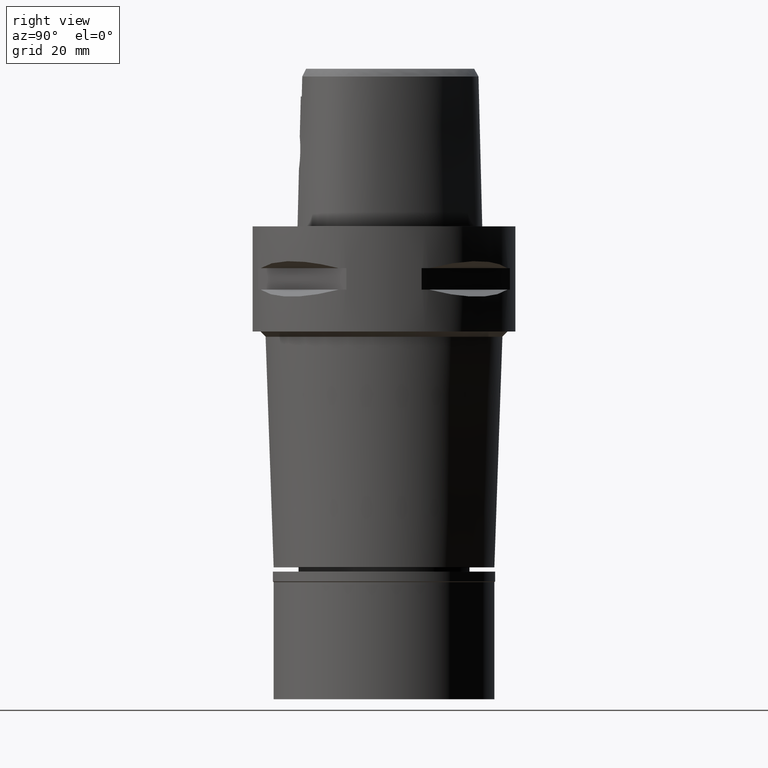
[diagram: clean part render]
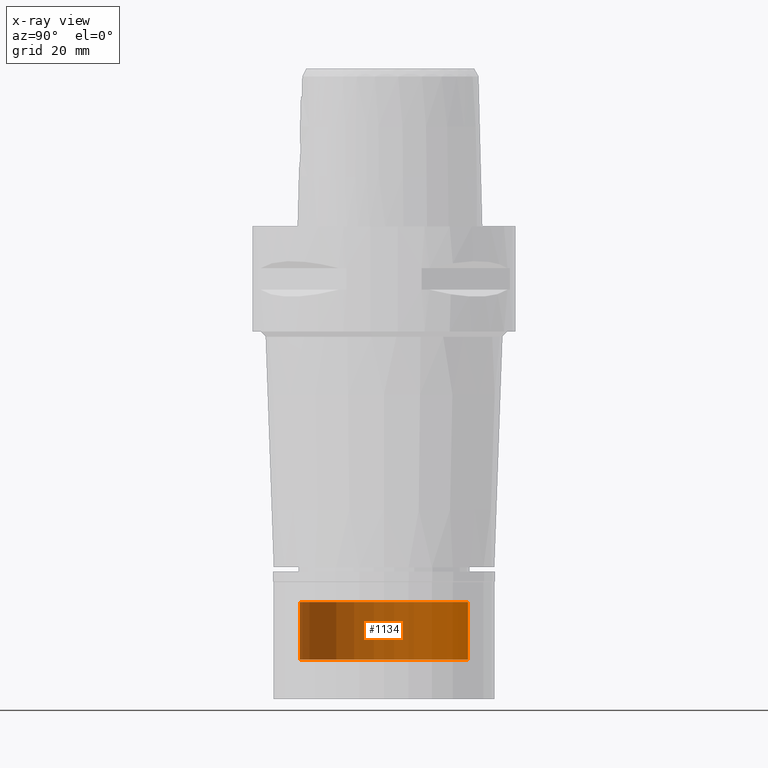
[diagram: x-ray — body ghosted, one internal face saturated and labeled with its STEP entity id]
A machine part, right view, then the same camera in x-ray: the body is ghosted and one INTERNAL B-rep face — a face not visible from any outside direction — is saturated and labeled: STEP entity #1134.
In plain terms, the highlighted cylindrical surface (partial cylindrical patch) has radius 16 mm, axis along (0, 0, -1).
Its self-contained STEP definition (entity closure, byte-faithful):
#139 = AXIS2_PLACEMENT_3D ( 'NONE', #3241, #340, #4810 ) ;
#340 = DIRECTION ( 'NONE',  ( 0.0000000000000000000, 0.0000000000000000000, -1.000000000000000000 ) ) ;
#464 = DIRECTION ( 'NONE',  ( 0.0000000000000000000, 0.0000000000000000000, -1.000000000000000000 ) ) ;
#731 = LINE ( 'NONE', #2235, #3375 ) ;
#804 = EDGE_LOOP ( 'NONE', ( #2417, #2622, #968, #3000 ) ) ;
#900 = DIRECTION ( 'NONE',  ( 0.0000000000000000000, 0.0000000000000000000, -1.000000000000000000 ) ) ;
#968 = ORIENTED_EDGE ( 'NONE', *, *, #2555, .T. ) ;
#972 = CARTESIAN_POINT ( 'NONE',  ( 0.0000000000000000000, 16.00000000000000000, -71.50000000000000000 ) ) ;
#977 = CIRCLE ( 'NONE', #4845, 16.00000000000000000 ) ;
#1026 = EDGE_CURVE ( 'NONE', #4263, #2845, #977, .T. ) ;
#1134 = ADVANCED_FACE ( 'NONE', ( #2381 ), #4212, .T. ) ;
#1279 = CARTESIAN_POINT ( 'NONE',  ( 0.0000000000000000000, 1.275163479612000028E-14, -82.50000000000000000 ) ) ;
#2235 = CARTESIAN_POINT ( 'NONE',  ( 0.0000000000000000000, -16.00000000000000000, -71.50000000000000000 ) ) ;
#2343 = CIRCLE ( 'NONE', #139, 16.00000000000000000 ) ;
#2381 = FACE_OUTER_BOUND ( 'NONE', #804, .T. ) ;
#2407 = DIRECTION ( 'NONE',  ( 0.0000000000000000000, 0.0000000000000000000, 1.000000000000000000 ) ) ;
#2417 = ORIENTED_EDGE ( 'NONE', *, *, #1026, .T. ) ;
#2555 = EDGE_CURVE ( 'NONE', #4485, #3501, #2343, .T. ) ;
#2613 = CARTESIAN_POINT ( 'NONE',  ( 0.0000000000000000000, -16.00000000000000000, -71.50000000000000000 ) ) ;
#2622 = ORIENTED_EDGE ( 'NONE', *, *, #2831, .F. ) ;
#2793 = DIRECTION ( 'NONE',  ( 0.0000000000000000000, 1.000000000000000000, 0.0000000000000000000 ) ) ;
#2831 = EDGE_CURVE ( 'NONE', #4485, #2845, #731, .T. ) ;
#2845 = VERTEX_POINT ( 'NONE', #3459 ) ;
#2960 = CARTESIAN_POINT ( 'NONE',  ( 0.0000000000000000000, 16.00000000000000000, -71.50000000000000000 ) ) ;
#2994 = CARTESIAN_POINT ( 'NONE',  ( 0.0000000000000000000, 16.00000000000000000, -82.50000000000000000 ) ) ;
#3000 = ORIENTED_EDGE ( 'NONE', *, *, #4866, .T. ) ;
#3118 = DIRECTION ( 'NONE',  ( 0.0000000000000000000, -1.000000000000000000, 0.0000000000000000000 ) ) ;
#3241 = CARTESIAN_POINT ( 'NONE',  ( 0.0000000000000000000, 1.275163479612000028E-14, -71.50000000000000000 ) ) ;
#3375 = VECTOR ( 'NONE', #3634, 1000.000000000000000 ) ;
#3459 = CARTESIAN_POINT ( 'NONE',  ( 0.0000000000000000000, -16.00000000000000000, -82.50000000000000000 ) ) ;
#3501 = VERTEX_POINT ( 'NONE', #2960 ) ;
#3561 = CARTESIAN_POINT ( 'NONE',  ( 0.0000000000000000000, 1.275163479612000028E-14, 4.125000000000000000 ) ) ;
#3634 = DIRECTION ( 'NONE',  ( 0.0000000000000000000, 0.0000000000000000000, -1.000000000000000000 ) ) ;
#4212 = CYLINDRICAL_SURFACE ( 'NONE', #4287, 16.00000000000000000 ) ;
#4263 = VERTEX_POINT ( 'NONE', #2994 ) ;
#4287 = AXIS2_PLACEMENT_3D ( 'NONE', #3561, #464, #3118 ) ;
#4356 = LINE ( 'NONE', #972, #4452 ) ;
#4452 = VECTOR ( 'NONE', #900, 1000.000000000000000 ) ;
#4485 = VERTEX_POINT ( 'NONE', #2613 ) ;
#4810 = DIRECTION ( 'NONE',  ( 0.0000000000000000000, -1.000000000000000000, 0.0000000000000000000 ) ) ;
#4845 = AXIS2_PLACEMENT_3D ( 'NONE', #1279, #2407, #2793 ) ;
#4866 = EDGE_CURVE ( 'NONE', #3501, #4263, #4356, .T. ) ;